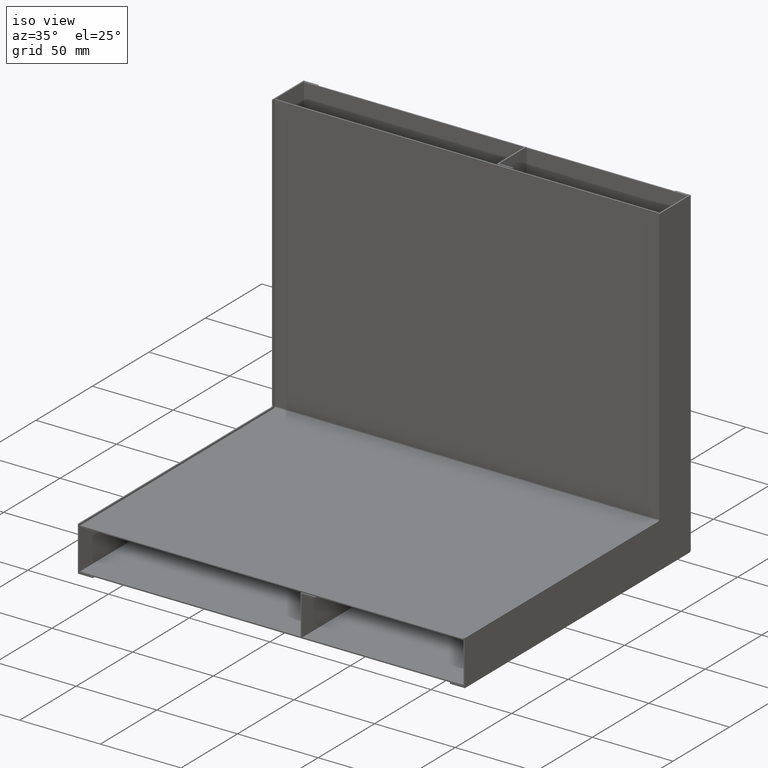
[diagram: clean part render]
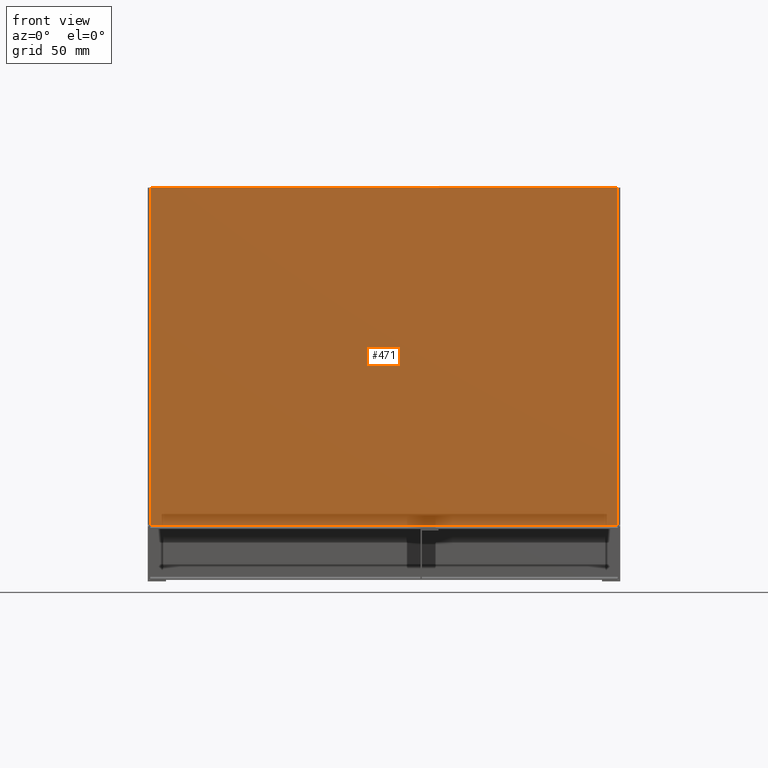
[diagram: tour spotlight — one face highlighted and labeled with its STEP entity id]
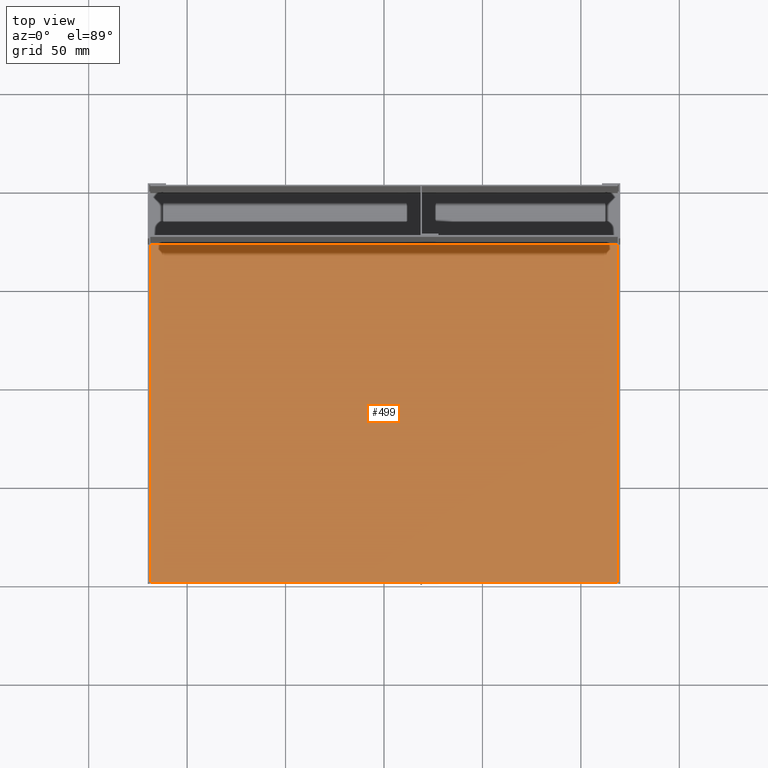
[diagram: tour spotlight — one face highlighted and labeled with its STEP entity id]
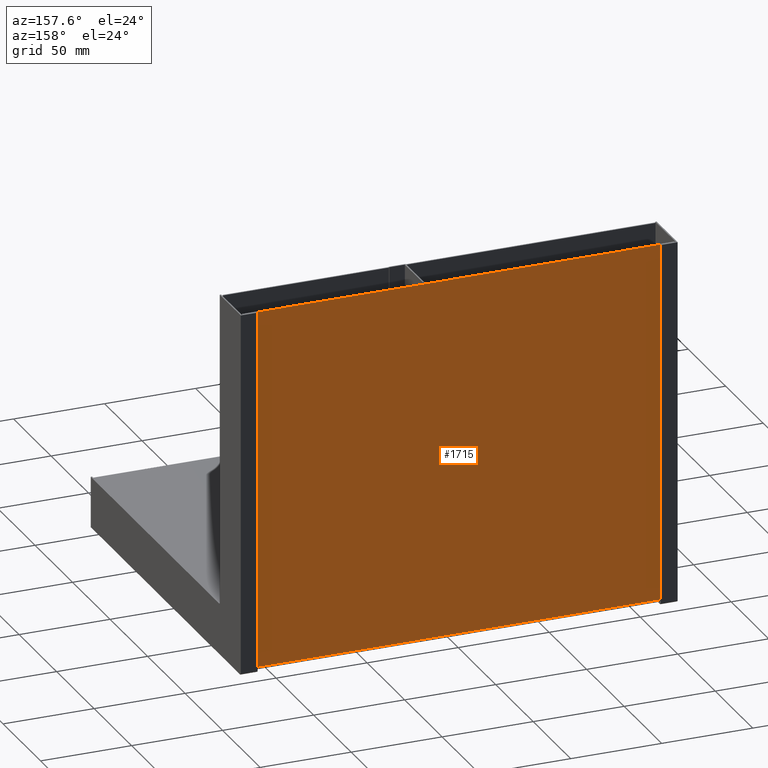
[diagram: tour spotlight — one face highlighted and labeled with its STEP entity id]
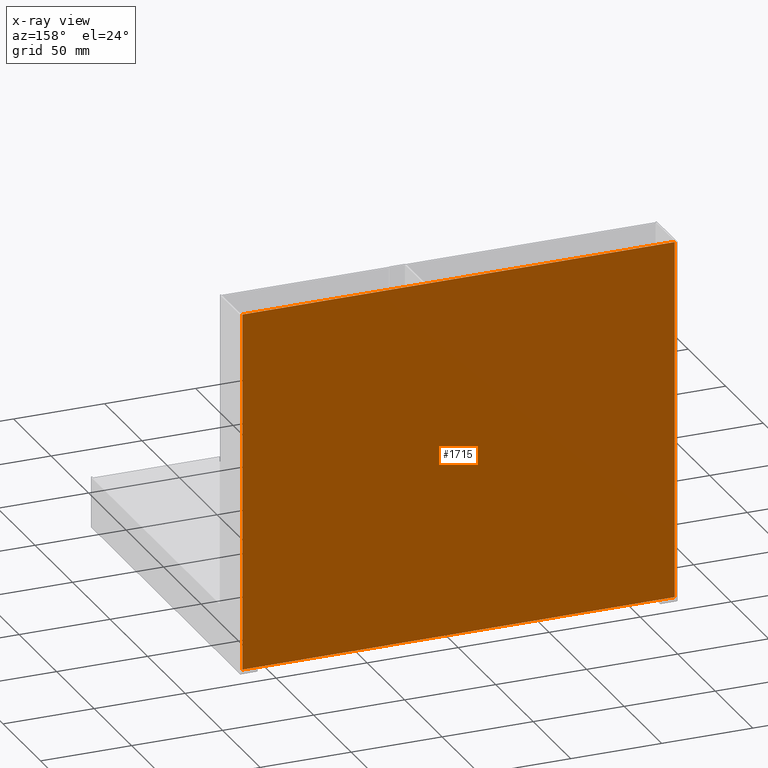
[diagram: x-ray of the same camera — body ghosted, this tour face saturated]
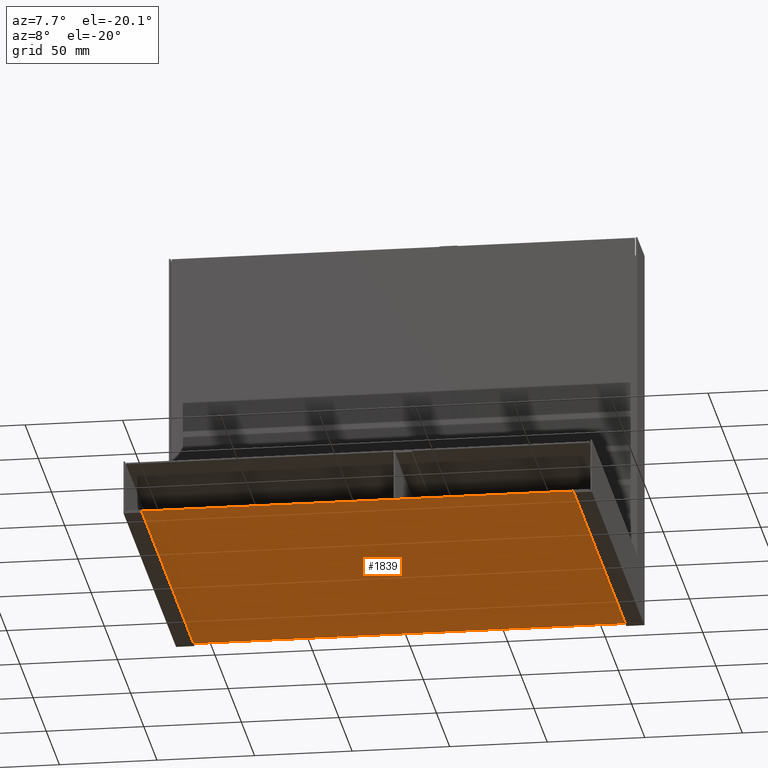
[diagram: tour spotlight — one face highlighted and labeled with its STEP entity id]
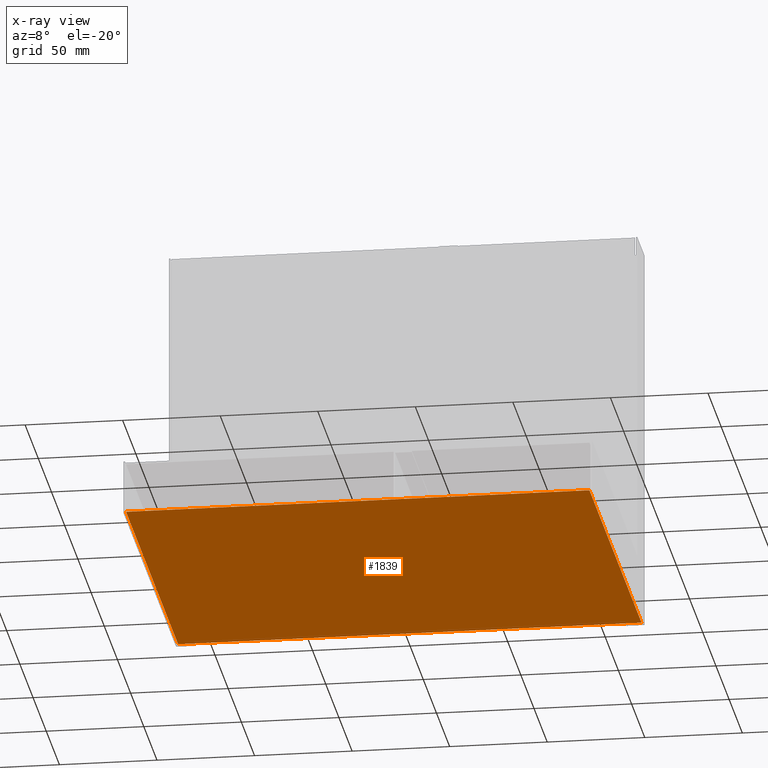
[diagram: x-ray of the same camera — body ghosted, this tour face saturated]
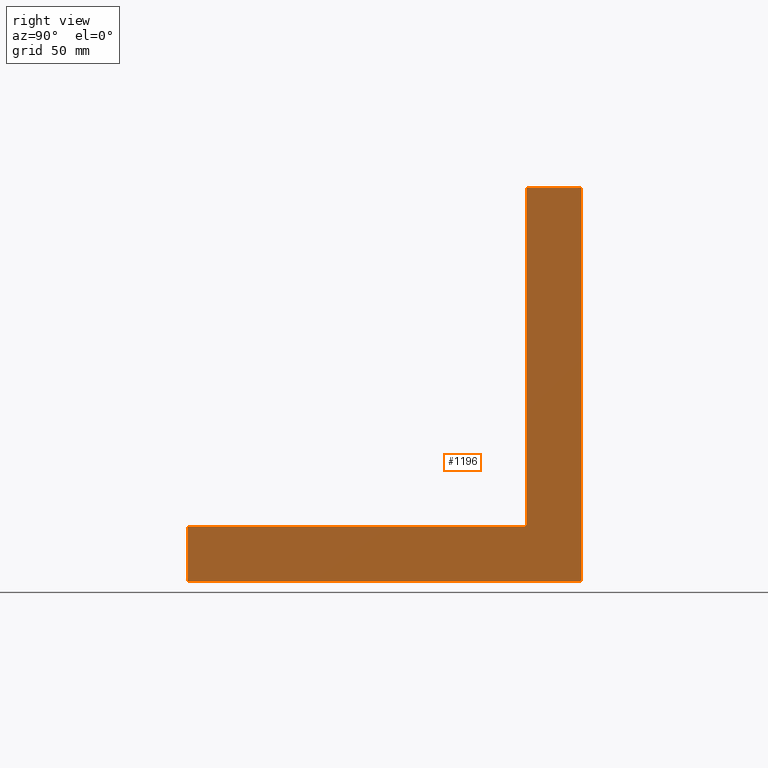
[diagram: tour spotlight — one face highlighted and labeled with its STEP entity id]
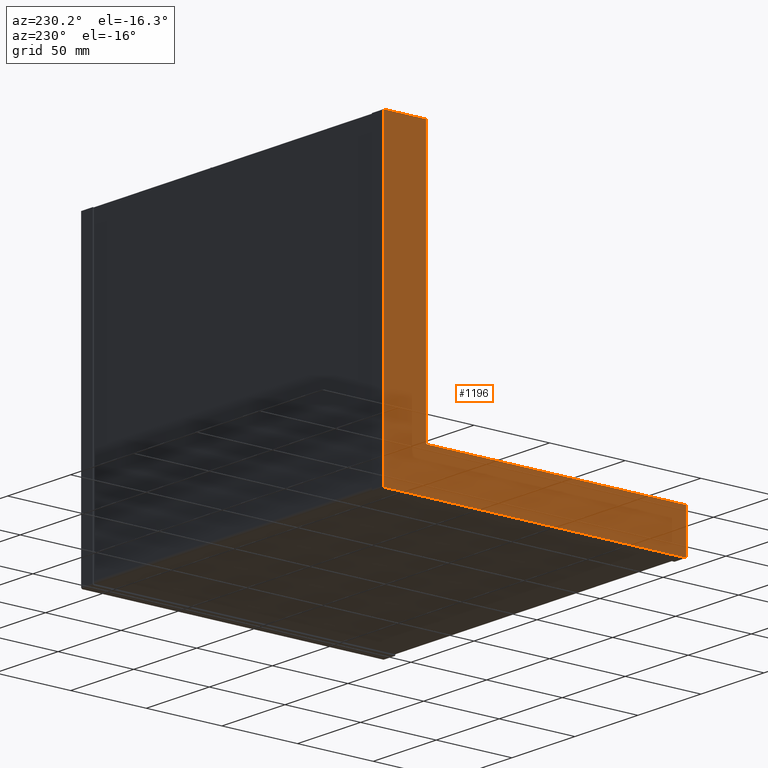
[diagram: tour spotlight — one face highlighted and labeled with its STEP entity id]
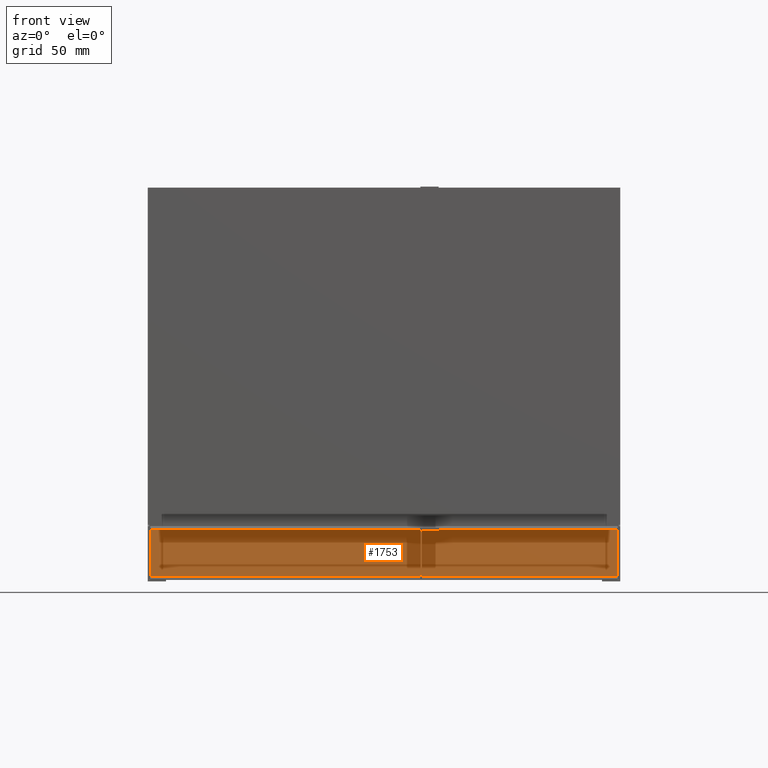
[diagram: tour spotlight — one face highlighted and labeled with its STEP entity id]
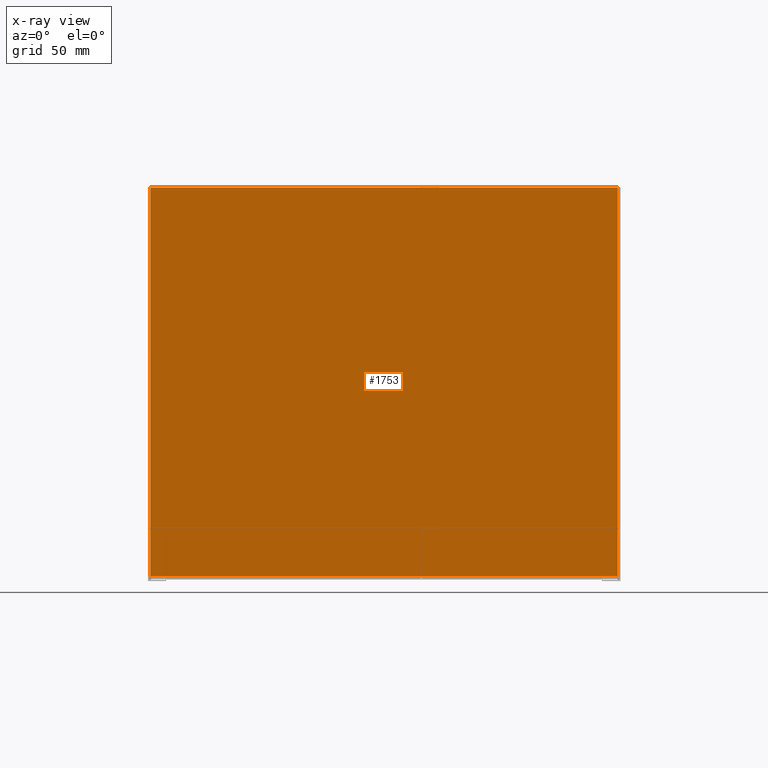
[diagram: x-ray of the same camera — body ghosted, this tour face saturated]
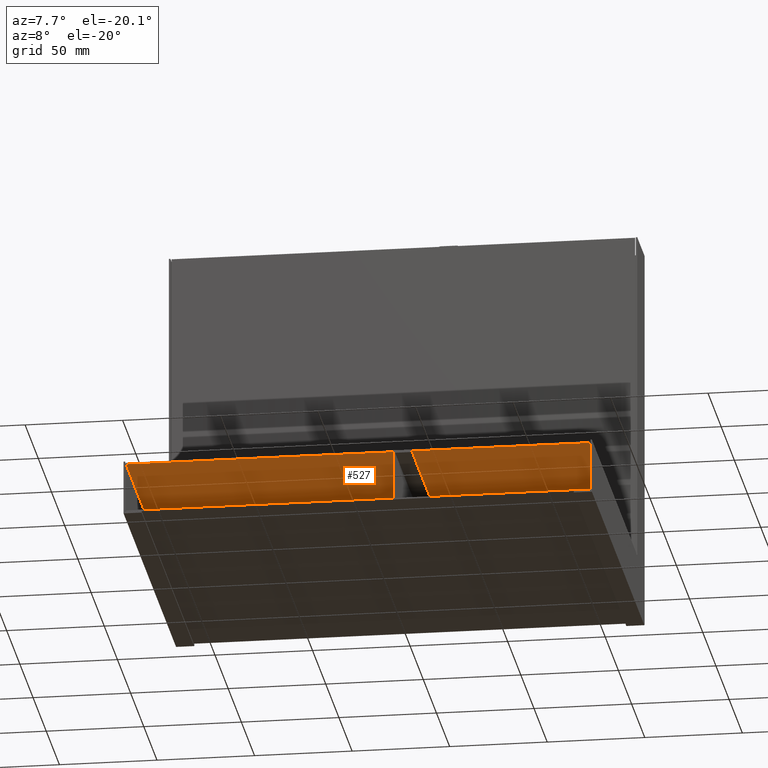
[diagram: tour spotlight — one face highlighted and labeled with its STEP entity id]
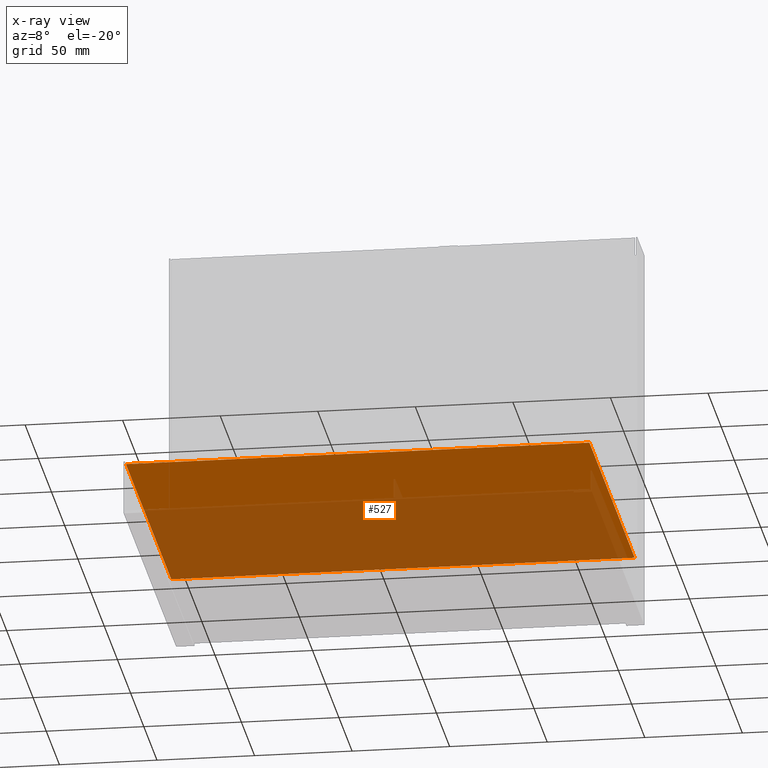
[diagram: x-ray of the same camera — body ghosted, this tour face saturated]
A machine part: a face-by-face anatomy tour. The part has 62 B-rep faces; the first image is the clean iso view, then the 8 largest visible faces are spotlighted one at a time (largest first), each with its STEP entity span.

Face 1 — front view, entity #471. In plain terms, the highlighted planar face has unit normal (0, -1, 0).
Definition (entity closure, byte-faithful):
#250=DIRECTION('',(0.E0,0.E0,1.E0));
#251=VECTOR('',#250,1.717200775253E2);
#252=CARTESIAN_POINT('',(-1.1875E2,-7.992247467147E-2,1.75E0));
#253=LINE('',#252,#251);
#257=DIRECTION('',(1.E0,0.E0,0.E0));
#258=VECTOR('',#257,2.375E2);
#259=CARTESIAN_POINT('',(-1.1875E2,-7.992247467202E-2,1.734700775253E2));
#260=LINE('',#259,#258);
#264=DIRECTION('',(0.E0,0.E0,-1.E0));
#265=VECTOR('',#264,1.717200775253E2);
#266=CARTESIAN_POINT('',(1.1875E2,-7.992247467202E-2,1.734700775253E2));
#267=LINE('',#266,#265);
#271=DIRECTION('',(1.E0,0.E0,0.E0));
#272=VECTOR('',#271,2.375E2);
#273=CARTESIAN_POINT('',(-1.1875E2,-7.992247467147E-2,1.75E0));
#274=LINE('',#273,#272);
#390=CARTESIAN_POINT('',(1.1875E2,-7.992247467202E-2,1.734700775253E2));
#391=CARTESIAN_POINT('',(1.1875E2,-7.992247467147E-2,1.75E0));
#392=VERTEX_POINT('',#390);
#393=VERTEX_POINT('',#391);
#398=CARTESIAN_POINT('',(-1.1875E2,-7.992247467147E-2,1.75E0));
#399=VERTEX_POINT('',#398);
#412=CARTESIAN_POINT('',(-1.1875E2,-7.992247467202E-2,1.734700775253E2));
#413=VERTEX_POINT('',#412);
#457=CARTESIAN_POINT('',(-1.1875E2,-7.992247467082E-2,-1.721299224747E2));
#458=DIRECTION('',(0.E0,-1.E0,0.E0));
#459=DIRECTION('',(1.E0,0.E0,0.E0));
#460=AXIS2_PLACEMENT_3D('',#457,#458,#459);
#461=PLANE('',#460);
#463=ORIENTED_EDGE('',*,*,#462,.F.);
#465=ORIENTED_EDGE('',*,*,#464,.T.);
#467=ORIENTED_EDGE('',*,*,#466,.T.);
#468=ORIENTED_EDGE('',*,*,#439,.T.);
#469=EDGE_LOOP('',(#463,#465,#467,#468));
#470=FACE_OUTER_BOUND('',#469,.F.);
#439=EDGE_CURVE('',#392,#393,#267,.T.);
#462=EDGE_CURVE('',#399,#393,#274,.T.);
#464=EDGE_CURVE('',#399,#413,#253,.T.);
#466=EDGE_CURVE('',#413,#392,#260,.T.);
#471=ADVANCED_FACE('',(#470),#461,.T.);

Face 2 — top view, entity #499. In plain terms, the highlighted planar face has unit normal (0, 0, 1).
Definition (entity closure, byte-faithful):
#294=DIRECTION('',(0.E0,-1.E0,0.E0));
#295=VECTOR('',#294,1.717200775253E2);
#296=CARTESIAN_POINT('',(1.1875E2,-1.079922474671E0,7.5E-1));
#297=LINE('',#296,#295);
#301=DIRECTION('',(-1.E0,0.E0,0.E0));
#302=VECTOR('',#301,2.375E2);
#303=CARTESIAN_POINT('',(1.1875E2,-1.728E2,7.5E-1));
#304=LINE('',#303,#302);
#308=DIRECTION('',(0.E0,1.E0,0.E0));
#309=VECTOR('',#308,1.717200775253E2);
#310=CARTESIAN_POINT('',(-1.1875E2,-1.728E2,7.5E-1));
#311=LINE('',#310,#309);
#315=DIRECTION('',(1.E0,0.E0,0.E0));
#316=VECTOR('',#315,2.375E2);
#317=CARTESIAN_POINT('',(-1.1875E2,-1.079922474671E0,7.5E-1));
#318=LINE('',#317,#316);
#404=CARTESIAN_POINT('',(1.1875E2,-1.079922474671E0,7.5E-1));
#405=CARTESIAN_POINT('',(1.1875E2,-1.728E2,7.5E-1));
#406=VERTEX_POINT('',#404);
#407=VERTEX_POINT('',#405);
#414=CARTESIAN_POINT('',(-1.1875E2,-1.079922474671E0,7.5E-1));
#415=VERTEX_POINT('',#414);
#416=CARTESIAN_POINT('',(-1.1875E2,-1.728E2,7.5E-1));
#417=VERTEX_POINT('',#416);
#486=CARTESIAN_POINT('',(-1.1875E2,-1.728E2,7.5E-1));
#487=DIRECTION('',(0.E0,0.E0,1.E0));
#488=DIRECTION('',(1.E0,0.E0,0.E0));
#489=AXIS2_PLACEMENT_3D('',#486,#487,#488);
#490=PLANE('',#489);
#491=ORIENTED_EDGE('',*,*,#450,.T.);
#493=ORIENTED_EDGE('',*,*,#492,.T.);
#495=ORIENTED_EDGE('',*,*,#494,.T.);
#496=ORIENTED_EDGE('',*,*,#479,.T.);
#497=EDGE_LOOP('',(#491,#493,#495,#496));
#498=FACE_OUTER_BOUND('',#497,.F.);
#450=EDGE_CURVE('',#406,#407,#297,.T.);
#479=EDGE_CURVE('',#415,#406,#318,.T.);
#492=EDGE_CURVE('',#407,#417,#304,.T.);
#494=EDGE_CURVE('',#417,#415,#311,.T.);
#499=ADVANCED_FACE('',(#498),#490,.T.);

Face 3 — auxiliary view, entity #1715. An x-ray twin of the same camera follows (body ghosted, this face saturated) — the face is partly hidden behind the body. In plain terms, the highlighted planar face has unit normal (0, -1, 0).
Definition (entity closure, byte-faithful):
#1496=DIRECTION('',(1.E0,0.E0,0.E0));
#1497=VECTOR('',#1496,2.375E2);
#1498=CARTESIAN_POINT('',(-1.1875E2,6.700775253285E-1,1.E0));
#1499=LINE('',#1498,#1497);
#1510=DIRECTION('',(0.E0,0.E0,-1.E0));
#1511=VECTOR('',#1510,1.974700775253E2);
#1512=CARTESIAN_POINT('',(1.1875E2,6.700775253278E-1,1.984700775253E2));
#1513=LINE('',#1512,#1511);
#1560=DIRECTION('',(0.E0,0.E0,1.E0));
#1561=VECTOR('',#1560,1.974700775253E2);
#1562=CARTESIAN_POINT('',(-1.1875E2,6.700775253285E-1,1.E0));
#1563=LINE('',#1562,#1561);
#1596=DIRECTION('',(1.E0,0.E0,0.E0));
#1597=VECTOR('',#1596,2.375E2);
#1598=CARTESIAN_POINT('',(-1.1875E2,6.700775253278E-1,1.984700775253E2));
#1599=LINE('',#1598,#1597);
#1668=CARTESIAN_POINT('',(1.1875E2,6.700775253278E-1,1.984700775253E2));
#1669=CARTESIAN_POINT('',(1.1875E2,6.700775253285E-1,1.E0));
#1670=VERTEX_POINT('',#1668);
#1671=VERTEX_POINT('',#1669);
#1672=CARTESIAN_POINT('',(-1.1875E2,6.700775253285E-1,1.E0));
#1673=CARTESIAN_POINT('',(-1.1875E2,6.700775253278E-1,1.984700775253E2));
#1674=VERTEX_POINT('',#1672);
#1675=VERTEX_POINT('',#1673);
#1700=CARTESIAN_POINT('',(-1.1875E2,6.700775253292E-1,-1.986299224747E2));
#1701=DIRECTION('',(0.E0,-1.E0,0.E0));
#1702=DIRECTION('',(1.E0,0.E0,0.E0));
#1703=AXIS2_PLACEMENT_3D('',#1700,#1701,#1702);
#1704=PLANE('',#1703);
#1706=ORIENTED_EDGE('',*,*,#1705,.F.);
#1708=ORIENTED_EDGE('',*,*,#1707,.F.);
#1710=ORIENTED_EDGE('',*,*,#1709,.F.);
#1712=ORIENTED_EDGE('',*,*,#1711,.T.);
#1713=EDGE_LOOP('',(#1706,#1708,#1710,#1712));
#1714=FACE_OUTER_BOUND('',#1713,.F.);
#1705=EDGE_CURVE('',#1670,#1671,#1513,.T.);
#1707=EDGE_CURVE('',#1675,#1670,#1599,.T.);
#1709=EDGE_CURVE('',#1674,#1675,#1563,.T.);
#1711=EDGE_CURVE('',#1674,#1671,#1499,.T.);
#1715=ADVANCED_FACE('',(#1714),#1704,.F.);

Face 4 — auxiliary view, entity #1839. An x-ray twin of the same camera follows (body ghosted, this face saturated) — the face is partly hidden behind the body. In plain terms, the highlighted planar face has unit normal (0, 0, 1).
Definition (entity closure, byte-faithful):
#1517=DIRECTION('',(0.E0,-1.E0,0.E0));
#1518=VECTOR('',#1517,1.974700775253E2);
#1519=CARTESIAN_POINT('',(1.1875E2,-1.079922474672E0,-7.5E-1));
#1520=LINE('',#1519,#1518);
#1582=DIRECTION('',(0.E0,1.E0,0.E0));
#1583=VECTOR('',#1582,1.974700775253E2);
#1584=CARTESIAN_POINT('',(-1.1875E2,-1.9855E2,-7.5E-1));
#1585=LINE('',#1584,#1583);
#1638=DIRECTION('',(-1.E0,0.E0,0.E0));
#1639=VECTOR('',#1638,2.375E2);
#1640=CARTESIAN_POINT('',(1.1875E2,-1.9855E2,-7.5E-1));
#1641=LINE('',#1640,#1639);
#1653=DIRECTION('',(1.E0,0.E0,0.E0));
#1654=VECTOR('',#1653,2.375E2);
#1655=CARTESIAN_POINT('',(-1.1875E2,-1.079922474672E0,-7.5E-1));
#1656=LINE('',#1655,#1654);
#1688=CARTESIAN_POINT('',(-1.1875E2,-1.079922474672E0,-7.5E-1));
#1689=CARTESIAN_POINT('',(1.1875E2,-1.079922474672E0,-7.5E-1));
#1690=VERTEX_POINT('',#1688);
#1691=VERTEX_POINT('',#1689);
#1696=CARTESIAN_POINT('',(-1.1875E2,-1.9855E2,-7.5E-1));
#1697=VERTEX_POINT('',#1696);
#1698=CARTESIAN_POINT('',(1.1875E2,-1.9855E2,-7.5E-1));
#1699=VERTEX_POINT('',#1698);
#1827=CARTESIAN_POINT('',(-1.1875E2,-1.9855E2,-7.5E-1));
#1828=DIRECTION('',(0.E0,0.E0,1.E0));
#1829=DIRECTION('',(1.E0,0.E0,0.E0));
#1830=AXIS2_PLACEMENT_3D('',#1827,#1828,#1829);
#1831=PLANE('',#1830);
#1833=ORIENTED_EDGE('',*,*,#1832,.F.);
#1834=ORIENTED_EDGE('',*,*,#1782,.F.);
#1835=ORIENTED_EDGE('',*,*,#1821,.F.);
#1836=ORIENTED_EDGE('',*,*,#1728,.F.);
#1837=EDGE_LOOP('',(#1833,#1834,#1835,#1836));
#1838=FACE_OUTER_BOUND('',#1837,.F.);
#1728=EDGE_CURVE('',#1691,#1699,#1520,.T.);
#1782=EDGE_CURVE('',#1697,#1690,#1585,.T.);
#1821=EDGE_CURVE('',#1699,#1697,#1641,.T.);
#1832=EDGE_CURVE('',#1690,#1691,#1656,.T.);
#1839=ADVANCED_FACE('',(#1838),#1831,.F.);

Face 5 — right view, entity #1196. In plain terms, the highlighted planar face has unit normal (1, 0, 0).
Definition (entity closure, byte-faithful):
#749=DIRECTION('',(0.E0,0.E0,1.E0));
#750=VECTOR('',#749,2.8E1);
#751=CARTESIAN_POINT('',(1.86E2,0.E0,-2.E2));
#752=LINE('',#751,#750);
#806=DIRECTION('',(-1.E0,0.E0,0.E0));
#807=VECTOR('',#806,2.8E1);
#808=CARTESIAN_POINT('',(1.4E1,0.E0,0.E0));
#809=LINE('',#808,#807);
#827=DIRECTION('',(0.E0,0.E0,1.E0));
#828=VECTOR('',#827,1.71E2);
#829=CARTESIAN_POINT('',(1.4E1,0.E0,-1.71E2));
#830=LINE('',#829,#828);
#849=CARTESIAN_POINT('',(1.5E1,0.E0,-1.71E2));
#850=DIRECTION('',(0.E0,1.E0,0.E0));
#851=DIRECTION('',(0.E0,0.E0,-1.E0));
#852=AXIS2_PLACEMENT_3D('',#849,#850,#851);
#871=DIRECTION('',(-1.E0,0.E0,0.E0));
#872=VECTOR('',#871,1.71E2);
#873=CARTESIAN_POINT('',(1.86E2,0.E0,-1.72E2));
#874=LINE('',#873,#872);
#885=DIRECTION('',(0.E0,0.E0,-1.E0));
#886=VECTOR('',#885,1.99E2);
#887=CARTESIAN_POINT('',(-1.4E1,0.E0,0.E0));
#888=LINE('',#887,#886);
#899=CARTESIAN_POINT('',(-1.3E1,0.E0,-1.99E2));
#900=DIRECTION('',(0.E0,-1.E0,0.E0));
#901=DIRECTION('',(-1.E0,0.E0,0.E0));
#902=AXIS2_PLACEMENT_3D('',#899,#900,#901);
#914=DIRECTION('',(1.E0,0.E0,0.E0));
#915=VECTOR('',#914,1.99E2);
#916=CARTESIAN_POINT('',(-1.3E1,0.E0,-2.E2));
#917=LINE('',#916,#915);
#986=CARTESIAN_POINT('',(-1.4E1,0.E0,0.E0));
#987=CARTESIAN_POINT('',(-1.4E1,0.E0,-1.99E2));
#988=VERTEX_POINT('',#986);
#989=VERTEX_POINT('',#987);
#990=CARTESIAN_POINT('',(1.4E1,0.E0,0.E0));
#991=VERTEX_POINT('',#990);
#992=CARTESIAN_POINT('',(1.4E1,0.E0,-1.71E2));
#993=VERTEX_POINT('',#992);
#994=CARTESIAN_POINT('',(1.5E1,0.E0,-1.72E2));
#995=VERTEX_POINT('',#994);
#996=CARTESIAN_POINT('',(1.86E2,0.E0,-1.72E2));
#997=VERTEX_POINT('',#996);
#998=CARTESIAN_POINT('',(1.86E2,0.E0,-2.E2));
#999=VERTEX_POINT('',#998);
#1000=CARTESIAN_POINT('',(-1.3E1,0.E0,-2.E2));
#1001=VERTEX_POINT('',#1000);
#1178=CARTESIAN_POINT('',(-1.3E1,0.E0,-1.99E2));
#1179=DIRECTION('',(0.E0,-1.E0,0.E0));
#1180=DIRECTION('',(0.E0,0.E0,-1.E0));
#1181=AXIS2_PLACEMENT_3D('',#1178,#1179,#1180);
#1182=PLANE('',#1181);
#1184=ORIENTED_EDGE('',*,*,#1183,.F.);
#1185=ORIENTED_EDGE('',*,*,#1127,.F.);
#1186=ORIENTED_EDGE('',*,*,#1145,.F.);
#1187=ORIENTED_EDGE('',*,*,#1159,.F.);
#1188=ORIENTED_EDGE('',*,*,#1172,.F.);
#1189=ORIENTED_EDGE('',*,*,#1070,.F.);
#1191=ORIENTED_EDGE('',*,*,#1190,.F.);
#1193=ORIENTED_EDGE('',*,*,#1192,.F.);
#1194=EDGE_LOOP('',(#1184,#1185,#1186,#1187,#1188,#1189,#1191,#1193));
#1195=FACE_OUTER_BOUND('',#1194,.F.);
#853=CIRCLE('',#852,1.E0);
#903=CIRCLE('',#902,1.E0);
#1070=EDGE_CURVE('',#999,#997,#752,.T.);
#1127=EDGE_CURVE('',#991,#988,#809,.T.);
#1145=EDGE_CURVE('',#993,#991,#830,.T.);
#1159=EDGE_CURVE('',#995,#993,#853,.T.);
#1172=EDGE_CURVE('',#997,#995,#874,.T.);
#1183=EDGE_CURVE('',#988,#989,#888,.T.);
#1190=EDGE_CURVE('',#1001,#999,#917,.T.);
#1192=EDGE_CURVE('',#989,#1001,#903,.T.);
#1196=ADVANCED_FACE('',(#1195),#1182,.T.);

Face 6 — auxiliary view, entity #1196. In plain terms, the highlighted planar face has unit normal (-1, 0, 0).
Definition (entity closure, byte-faithful):
#749=DIRECTION('',(0.E0,0.E0,1.E0));
#750=VECTOR('',#749,2.8E1);
#751=CARTESIAN_POINT('',(1.86E2,0.E0,-2.E2));
#752=LINE('',#751,#750);
#806=DIRECTION('',(-1.E0,0.E0,0.E0));
#807=VECTOR('',#806,2.8E1);
#808=CARTESIAN_POINT('',(1.4E1,0.E0,0.E0));
#809=LINE('',#808,#807);
#827=DIRECTION('',(0.E0,0.E0,1.E0));
#828=VECTOR('',#827,1.71E2);
#829=CARTESIAN_POINT('',(1.4E1,0.E0,-1.71E2));
#830=LINE('',#829,#828);
#849=CARTESIAN_POINT('',(1.5E1,0.E0,-1.71E2));
#850=DIRECTION('',(0.E0,1.E0,0.E0));
#851=DIRECTION('',(0.E0,0.E0,-1.E0));
#852=AXIS2_PLACEMENT_3D('',#849,#850,#851);
#871=DIRECTION('',(-1.E0,0.E0,0.E0));
#872=VECTOR('',#871,1.71E2);
#873=CARTESIAN_POINT('',(1.86E2,0.E0,-1.72E2));
#874=LINE('',#873,#872);
#885=DIRECTION('',(0.E0,0.E0,-1.E0));
#886=VECTOR('',#885,1.99E2);
#887=CARTESIAN_POINT('',(-1.4E1,0.E0,0.E0));
#888=LINE('',#887,#886);
#899=CARTESIAN_POINT('',(-1.3E1,0.E0,-1.99E2));
#900=DIRECTION('',(0.E0,-1.E0,0.E0));
#901=DIRECTION('',(-1.E0,0.E0,0.E0));
#902=AXIS2_PLACEMENT_3D('',#899,#900,#901);
#914=DIRECTION('',(1.E0,0.E0,0.E0));
#915=VECTOR('',#914,1.99E2);
#916=CARTESIAN_POINT('',(-1.3E1,0.E0,-2.E2));
#917=LINE('',#916,#915);
#986=CARTESIAN_POINT('',(-1.4E1,0.E0,0.E0));
#987=CARTESIAN_POINT('',(-1.4E1,0.E0,-1.99E2));
#988=VERTEX_POINT('',#986);
#989=VERTEX_POINT('',#987);
#990=CARTESIAN_POINT('',(1.4E1,0.E0,0.E0));
#991=VERTEX_POINT('',#990);
#992=CARTESIAN_POINT('',(1.4E1,0.E0,-1.71E2));
#993=VERTEX_POINT('',#992);
#994=CARTESIAN_POINT('',(1.5E1,0.E0,-1.72E2));
#995=VERTEX_POINT('',#994);
#996=CARTESIAN_POINT('',(1.86E2,0.E0,-1.72E2));
#997=VERTEX_POINT('',#996);
#998=CARTESIAN_POINT('',(1.86E2,0.E0,-2.E2));
#999=VERTEX_POINT('',#998);
#1000=CARTESIAN_POINT('',(-1.3E1,0.E0,-2.E2));
#1001=VERTEX_POINT('',#1000);
#1178=CARTESIAN_POINT('',(-1.3E1,0.E0,-1.99E2));
#1179=DIRECTION('',(0.E0,-1.E0,0.E0));
#1180=DIRECTION('',(0.E0,0.E0,-1.E0));
#1181=AXIS2_PLACEMENT_3D('',#1178,#1179,#1180);
#1182=PLANE('',#1181);
#1184=ORIENTED_EDGE('',*,*,#1183,.F.);
#1185=ORIENTED_EDGE('',*,*,#1127,.F.);
#1186=ORIENTED_EDGE('',*,*,#1145,.F.);
#1187=ORIENTED_EDGE('',*,*,#1159,.F.);
#1188=ORIENTED_EDGE('',*,*,#1172,.F.);
#1189=ORIENTED_EDGE('',*,*,#1070,.F.);
#1191=ORIENTED_EDGE('',*,*,#1190,.F.);
#1193=ORIENTED_EDGE('',*,*,#1192,.F.);
#1194=EDGE_LOOP('',(#1184,#1185,#1186,#1187,#1188,#1189,#1191,#1193));
#1195=FACE_OUTER_BOUND('',#1194,.F.);
#853=CIRCLE('',#852,1.E0);
#903=CIRCLE('',#902,1.E0);
#1070=EDGE_CURVE('',#999,#997,#752,.T.);
#1127=EDGE_CURVE('',#991,#988,#809,.T.);
#1145=EDGE_CURVE('',#993,#991,#830,.T.);
#1159=EDGE_CURVE('',#995,#993,#853,.T.);
#1172=EDGE_CURVE('',#997,#995,#874,.T.);
#1183=EDGE_CURVE('',#988,#989,#888,.T.);
#1190=EDGE_CURVE('',#1001,#999,#917,.T.);
#1192=EDGE_CURVE('',#989,#1001,#903,.T.);
#1196=ADVANCED_FACE('',(#1195),#1182,.T.);

Face 7 — front view, entity #1753. An x-ray twin of the same camera follows (body ghosted, this face saturated) — the face is partly hidden behind the body. In plain terms, the highlighted planar face has unit normal (0, -1, 0).
Definition (entity closure, byte-faithful):
#1532=DIRECTION('',(0.E0,0.E0,1.E0));
#1533=VECTOR('',#1532,1.974700775253E2);
#1534=CARTESIAN_POINT('',(-1.1875E2,-7.992247467149E-2,1.E0));
#1535=LINE('',#1534,#1533);
#1539=DIRECTION('',(1.E0,0.E0,0.E0));
#1540=VECTOR('',#1539,2.375E2);
#1541=CARTESIAN_POINT('',(-1.1875E2,-7.992247467217E-2,1.984700775253E2));
#1542=LINE('',#1541,#1540);
#1546=DIRECTION('',(0.E0,0.E0,-1.E0));
#1547=VECTOR('',#1546,1.974700775253E2);
#1548=CARTESIAN_POINT('',(1.1875E2,-7.992247467217E-2,1.984700775253E2));
#1549=LINE('',#1548,#1547);
#1553=DIRECTION('',(1.E0,0.E0,0.E0));
#1554=VECTOR('',#1553,2.375E2);
#1555=CARTESIAN_POINT('',(-1.1875E2,-7.992247467149E-2,1.E0));
#1556=LINE('',#1555,#1554);
#1676=CARTESIAN_POINT('',(-1.1875E2,-7.992247467217E-2,1.984700775253E2));
#1677=CARTESIAN_POINT('',(1.1875E2,-7.992247467217E-2,1.984700775253E2));
#1678=VERTEX_POINT('',#1676);
#1679=VERTEX_POINT('',#1677);
#1680=CARTESIAN_POINT('',(1.1875E2,-7.992247467149E-2,1.E0));
#1681=VERTEX_POINT('',#1680);
#1682=CARTESIAN_POINT('',(-1.1875E2,-7.992247467149E-2,1.E0));
#1683=VERTEX_POINT('',#1682);
#1739=CARTESIAN_POINT('',(-1.1875E2,-7.992247467078E-2,-1.986299224747E2));
#1740=DIRECTION('',(0.E0,-1.E0,0.E0));
#1741=DIRECTION('',(1.E0,0.E0,0.E0));
#1742=AXIS2_PLACEMENT_3D('',#1739,#1740,#1741);
#1743=PLANE('',#1742);
#1745=ORIENTED_EDGE('',*,*,#1744,.F.);
#1747=ORIENTED_EDGE('',*,*,#1746,.T.);
#1749=ORIENTED_EDGE('',*,*,#1748,.T.);
#1750=ORIENTED_EDGE('',*,*,#1721,.T.);
#1751=EDGE_LOOP('',(#1745,#1747,#1749,#1750));
#1752=FACE_OUTER_BOUND('',#1751,.F.);
#1721=EDGE_CURVE('',#1679,#1681,#1549,.T.);
#1744=EDGE_CURVE('',#1683,#1681,#1556,.T.);
#1746=EDGE_CURVE('',#1683,#1678,#1535,.T.);
#1748=EDGE_CURVE('',#1678,#1679,#1542,.T.);
#1753=ADVANCED_FACE('',(#1752),#1743,.T.);

Face 8 — auxiliary view, entity #527. An x-ray twin of the same camera follows (body ghosted, this face saturated) — the face is partly hidden behind the body. In plain terms, the highlighted planar face has unit normal (0, 0, 1).
Definition (entity closure, byte-faithful):
#236=DIRECTION('',(0.E0,-1.E0,0.E0));
#237=VECTOR('',#236,1.717200775253E2);
#238=CARTESIAN_POINT('',(1.1875E2,-1.079922474671E0,0.E0));
#239=LINE('',#238,#237);
#322=DIRECTION('',(-1.E0,0.E0,0.E0));
#323=VECTOR('',#322,2.375E2);
#324=CARTESIAN_POINT('',(1.1875E2,-1.728E2,0.E0));
#325=LINE('',#324,#323);
#336=DIRECTION('',(1.E0,0.E0,0.E0));
#337=VECTOR('',#336,2.375E2);
#338=CARTESIAN_POINT('',(-1.1875E2,-1.079922474671E0,0.E0));
#339=LINE('',#338,#337);
#357=DIRECTION('',(0.E0,1.E0,0.E0));
#358=VECTOR('',#357,1.717200775253E2);
#359=CARTESIAN_POINT('',(-1.1875E2,-1.728E2,0.E0));
#360=LINE('',#359,#358);
#400=CARTESIAN_POINT('',(1.1875E2,-1.728E2,0.E0));
#401=CARTESIAN_POINT('',(-1.1875E2,-1.728E2,0.E0));
#402=VERTEX_POINT('',#400);
#403=VERTEX_POINT('',#401);
#408=CARTESIAN_POINT('',(-1.1875E2,-1.079922474671E0,0.E0));
#409=CARTESIAN_POINT('',(1.1875E2,-1.079922474671E0,0.E0));
#410=VERTEX_POINT('',#408);
#411=VERTEX_POINT('',#409);
#514=CARTESIAN_POINT('',(-1.1875E2,-1.728E2,0.E0));
#515=DIRECTION('',(0.E0,0.E0,1.E0));
#516=DIRECTION('',(1.E0,0.E0,0.E0));
#517=AXIS2_PLACEMENT_3D('',#514,#515,#516);
#518=PLANE('',#517);
#520=ORIENTED_EDGE('',*,*,#519,.F.);
#522=ORIENTED_EDGE('',*,*,#521,.F.);
#523=ORIENTED_EDGE('',*,*,#505,.F.);
#524=ORIENTED_EDGE('',*,*,#446,.F.);
#525=EDGE_LOOP('',(#520,#522,#523,#524));
#526=FACE_OUTER_BOUND('',#525,.F.);
#446=EDGE_CURVE('',#411,#402,#239,.T.);
#505=EDGE_CURVE('',#402,#403,#325,.T.);
#519=EDGE_CURVE('',#410,#411,#339,.T.);
#521=EDGE_CURVE('',#403,#410,#360,.T.);
#527=ADVANCED_FACE('',(#526),#518,.F.);